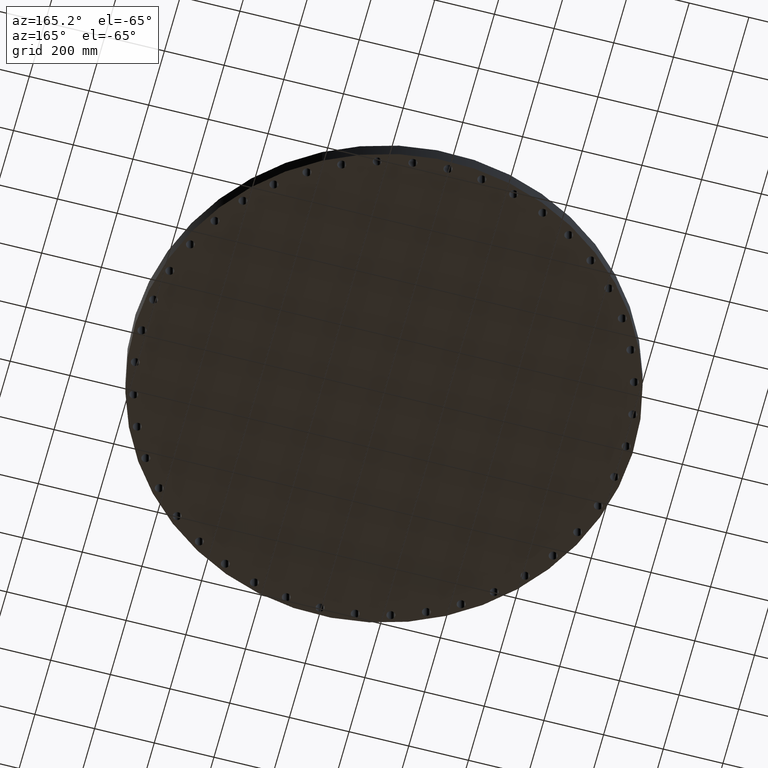
[diagram: clean part render]
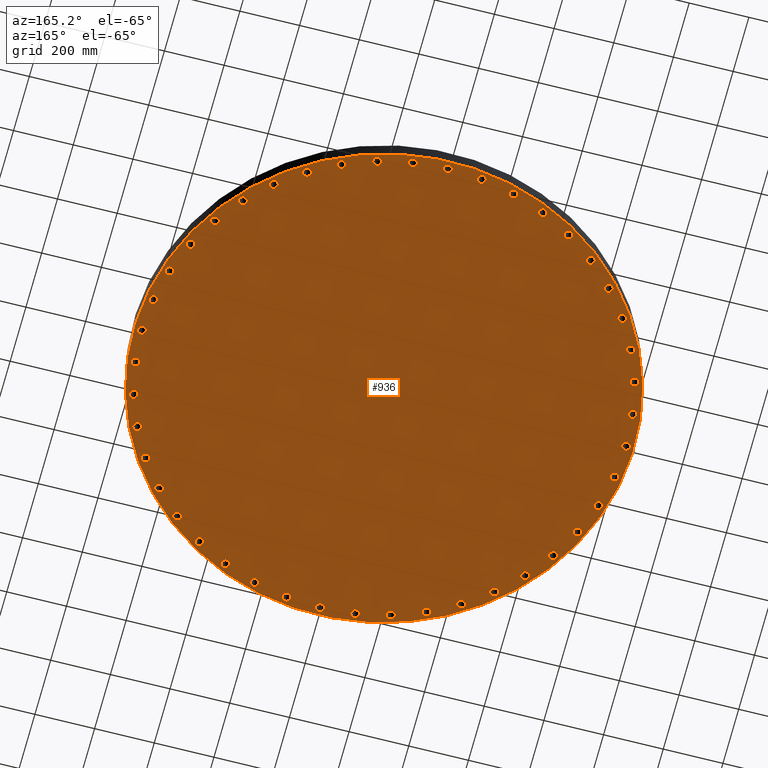
[diagram: same view with one face highlighted and labeled with its STEP entity id]
A machine part, auxiliary view. The second image highlights one B-rep face of the part: STEP entity #936.
In plain terms, the highlighted planar face has unit normal (0, 0, -1).
Its self-contained STEP definition (entity closure, byte-faithful):
#51=AXIS2_PLACEMENT_3D('Circle Axis2P3D',#49,#50,$) ;
#77=AXIS2_PLACEMENT_3D('Circle Axis2P3D',#75,#76,$) ;
#99=AXIS2_PLACEMENT_3D('Circle Axis2P3D',#97,#98,$) ;
#134=AXIS2_PLACEMENT_3D('Circle Axis2P3D',#132,#133,$) ;
#152=AXIS2_PLACEMENT_3D('Plane Axis2P3D',#149,#150,#151) ;
#164=AXIS2_PLACEMENT_3D('Circle Axis2P3D',#162,#163,$) ;
#173=AXIS2_PLACEMENT_3D('Circle Axis2P3D',#171,#172,$) ;
#182=AXIS2_PLACEMENT_3D('Circle Axis2P3D',#180,#181,$) ;
#191=AXIS2_PLACEMENT_3D('Circle Axis2P3D',#189,#190,$) ;
#200=AXIS2_PLACEMENT_3D('Circle Axis2P3D',#198,#199,$) ;
#209=AXIS2_PLACEMENT_3D('Circle Axis2P3D',#207,#208,$) ;
#218=AXIS2_PLACEMENT_3D('Circle Axis2P3D',#216,#217,$) ;
#227=AXIS2_PLACEMENT_3D('Circle Axis2P3D',#225,#226,$) ;
#236=AXIS2_PLACEMENT_3D('Circle Axis2P3D',#234,#235,$) ;
#245=AXIS2_PLACEMENT_3D('Circle Axis2P3D',#243,#244,$) ;
#254=AXIS2_PLACEMENT_3D('Circle Axis2P3D',#252,#253,$) ;
#263=AXIS2_PLACEMENT_3D('Circle Axis2P3D',#261,#262,$) ;
#272=AXIS2_PLACEMENT_3D('Circle Axis2P3D',#270,#271,$) ;
#281=AXIS2_PLACEMENT_3D('Circle Axis2P3D',#279,#280,$) ;
#290=AXIS2_PLACEMENT_3D('Circle Axis2P3D',#288,#289,$) ;
#299=AXIS2_PLACEMENT_3D('Circle Axis2P3D',#297,#298,$) ;
#308=AXIS2_PLACEMENT_3D('Circle Axis2P3D',#306,#307,$) ;
#317=AXIS2_PLACEMENT_3D('Circle Axis2P3D',#315,#316,$) ;
#326=AXIS2_PLACEMENT_3D('Circle Axis2P3D',#324,#325,$) ;
#335=AXIS2_PLACEMENT_3D('Circle Axis2P3D',#333,#334,$) ;
#344=AXIS2_PLACEMENT_3D('Circle Axis2P3D',#342,#343,$) ;
#353=AXIS2_PLACEMENT_3D('Circle Axis2P3D',#351,#352,$) ;
#362=AXIS2_PLACEMENT_3D('Circle Axis2P3D',#360,#361,$) ;
#371=AXIS2_PLACEMENT_3D('Circle Axis2P3D',#369,#370,$) ;
#380=AXIS2_PLACEMENT_3D('Circle Axis2P3D',#378,#379,$) ;
#389=AXIS2_PLACEMENT_3D('Circle Axis2P3D',#387,#388,$) ;
#398=AXIS2_PLACEMENT_3D('Circle Axis2P3D',#396,#397,$) ;
#407=AXIS2_PLACEMENT_3D('Circle Axis2P3D',#405,#406,$) ;
#416=AXIS2_PLACEMENT_3D('Circle Axis2P3D',#414,#415,$) ;
#425=AXIS2_PLACEMENT_3D('Circle Axis2P3D',#423,#424,$) ;
#434=AXIS2_PLACEMENT_3D('Circle Axis2P3D',#432,#433,$) ;
#443=AXIS2_PLACEMENT_3D('Circle Axis2P3D',#441,#442,$) ;
#452=AXIS2_PLACEMENT_3D('Circle Axis2P3D',#450,#451,$) ;
#461=AXIS2_PLACEMENT_3D('Circle Axis2P3D',#459,#460,$) ;
#470=AXIS2_PLACEMENT_3D('Circle Axis2P3D',#468,#469,$) ;
#479=AXIS2_PLACEMENT_3D('Circle Axis2P3D',#477,#478,$) ;
#488=AXIS2_PLACEMENT_3D('Circle Axis2P3D',#486,#487,$) ;
#497=AXIS2_PLACEMENT_3D('Circle Axis2P3D',#495,#496,$) ;
#506=AXIS2_PLACEMENT_3D('Circle Axis2P3D',#504,#505,$) ;
#515=AXIS2_PLACEMENT_3D('Circle Axis2P3D',#513,#514,$) ;
#524=AXIS2_PLACEMENT_3D('Circle Axis2P3D',#522,#523,$) ;
#533=AXIS2_PLACEMENT_3D('Circle Axis2P3D',#531,#532,$) ;
#542=AXIS2_PLACEMENT_3D('Circle Axis2P3D',#540,#541,$) ;
#551=AXIS2_PLACEMENT_3D('Circle Axis2P3D',#549,#550,$) ;
#560=AXIS2_PLACEMENT_3D('Circle Axis2P3D',#558,#559,$) ;
#569=AXIS2_PLACEMENT_3D('Circle Axis2P3D',#567,#568,$) ;
#578=AXIS2_PLACEMENT_3D('Circle Axis2P3D',#576,#577,$) ;
#587=AXIS2_PLACEMENT_3D('Circle Axis2P3D',#585,#586,$) ;
#596=AXIS2_PLACEMENT_3D('Circle Axis2P3D',#594,#595,$) ;
#605=AXIS2_PLACEMENT_3D('Circle Axis2P3D',#603,#604,$) ;
#614=AXIS2_PLACEMENT_3D('Circle Axis2P3D',#612,#613,$) ;
#623=AXIS2_PLACEMENT_3D('Circle Axis2P3D',#621,#622,$) ;
#632=AXIS2_PLACEMENT_3D('Circle Axis2P3D',#630,#631,$) ;
#641=AXIS2_PLACEMENT_3D('Circle Axis2P3D',#639,#640,$) ;
#650=AXIS2_PLACEMENT_3D('Circle Axis2P3D',#648,#649,$) ;
#659=AXIS2_PLACEMENT_3D('Circle Axis2P3D',#657,#658,$) ;
#668=AXIS2_PLACEMENT_3D('Circle Axis2P3D',#666,#667,$) ;
#677=AXIS2_PLACEMENT_3D('Circle Axis2P3D',#675,#676,$) ;
#686=AXIS2_PLACEMENT_3D('Circle Axis2P3D',#684,#685,$) ;
#695=AXIS2_PLACEMENT_3D('Circle Axis2P3D',#693,#694,$) ;
#704=AXIS2_PLACEMENT_3D('Circle Axis2P3D',#702,#703,$) ;
#713=AXIS2_PLACEMENT_3D('Circle Axis2P3D',#711,#712,$) ;
#722=AXIS2_PLACEMENT_3D('Circle Axis2P3D',#720,#721,$) ;
#731=AXIS2_PLACEMENT_3D('Circle Axis2P3D',#729,#730,$) ;
#740=AXIS2_PLACEMENT_3D('Circle Axis2P3D',#738,#739,$) ;
#749=AXIS2_PLACEMENT_3D('Circle Axis2P3D',#747,#748,$) ;
#758=AXIS2_PLACEMENT_3D('Circle Axis2P3D',#756,#757,$) ;
#767=AXIS2_PLACEMENT_3D('Circle Axis2P3D',#765,#766,$) ;
#776=AXIS2_PLACEMENT_3D('Circle Axis2P3D',#774,#775,$) ;
#785=AXIS2_PLACEMENT_3D('Circle Axis2P3D',#783,#784,$) ;
#794=AXIS2_PLACEMENT_3D('Circle Axis2P3D',#792,#793,$) ;
#803=AXIS2_PLACEMENT_3D('Circle Axis2P3D',#801,#802,$) ;
#812=AXIS2_PLACEMENT_3D('Circle Axis2P3D',#810,#811,$) ;
#821=AXIS2_PLACEMENT_3D('Circle Axis2P3D',#819,#820,$) ;
#830=AXIS2_PLACEMENT_3D('Circle Axis2P3D',#828,#829,$) ;
#839=AXIS2_PLACEMENT_3D('Circle Axis2P3D',#837,#838,$) ;
#848=AXIS2_PLACEMENT_3D('Circle Axis2P3D',#846,#847,$) ;
#857=AXIS2_PLACEMENT_3D('Circle Axis2P3D',#855,#856,$) ;
#866=AXIS2_PLACEMENT_3D('Circle Axis2P3D',#864,#865,$) ;
#875=AXIS2_PLACEMENT_3D('Circle Axis2P3D',#873,#874,$) ;
#884=AXIS2_PLACEMENT_3D('Circle Axis2P3D',#882,#883,$) ;
#893=AXIS2_PLACEMENT_3D('Circle Axis2P3D',#891,#892,$) ;
#902=AXIS2_PLACEMENT_3D('Circle Axis2P3D',#900,#901,$) ;
#911=AXIS2_PLACEMENT_3D('Circle Axis2P3D',#909,#910,$) ;
#920=AXIS2_PLACEMENT_3D('Circle Axis2P3D',#918,#919,$) ;
#929=AXIS2_PLACEMENT_3D('Circle Axis2P3D',#927,#928,$) ;
#44=CARTESIAN_POINT('Vertex',(31.4485537655,0.268478301619,0.)) ;
#49=CARTESIAN_POINT('Axis2P3D Location',(31.9400000001,0.,0.)) ;
#53=CARTESIAN_POINT('Vertex',(32.4314462348,-0.268478301619,0.)) ;
#75=CARTESIAN_POINT('Axis2P3D Location',(31.9400000001,0.,0.)) ;
#97=CARTESIAN_POINT('Axis2P3D Location',(0.,0.,3.63663604917E-015)) ;
#101=CARTESIAN_POINT('Vertex',(15.821042774,28.9602245425,3.63663604917E-015)) ;
#103=CARTESIAN_POINT('Vertex',(-15.821042774,-28.9602245425,3.63663604917E-015)) ;
#132=CARTESIAN_POINT('Axis2P3D Location',(0.,0.,3.63663604917E-015)) ;
#149=CARTESIAN_POINT('Axis2P3D Location',(0.,0.,0.)) ;
#162=CARTESIAN_POINT('Axis2P3D Location',(31.6148968538,-4.54553593447,0.)) ;
#166=CARTESIAN_POINT('Vertex',(31.1666612793,-4.20985026344,0.)) ;
#168=CARTESIAN_POINT('Vertex',(32.0631324283,-4.8812216055,-2.23792987641E-015)) ;
#171=CARTESIAN_POINT('Axis2P3D Location',(31.6148968538,-4.54553593447,0.)) ;
#180=CARTESIAN_POINT('Axis2P3D Location',(30.6462055774,-8.99853786555,0.)) ;
#184=CARTESIAN_POINT('Vertex',(30.2503054467,-8.60247841734,0.)) ;
#186=CARTESIAN_POINT('Vertex',(31.0421057081,-9.39459731376,-2.23792987641E-015)) ;
#189=CARTESIAN_POINT('Axis2P3D Location',(30.6462055774,-8.99853786555,0.)) ;
#198=CARTESIAN_POINT('Axis2P3D Location',(29.0536459317,-13.2683555153,0.)) ;
#202=CARTESIAN_POINT('Vertex',(28.7181406299,-12.8199849182,0.)) ;
#204=CARTESIAN_POINT('Vertex',(29.3891512336,-13.7167261125,0.)) ;
#207=CARTESIAN_POINT('Axis2P3D Location',(29.0536459317,-13.2683555153,0.)) ;
#216=CARTESIAN_POINT('Axis2P3D Location',(26.8696378387,-17.2680677096,0.)) ;
#220=CARTESIAN_POINT('Vertex',(26.6013572861,-16.7765134958,0.)) ;
#222=CARTESIAN_POINT('Vertex',(27.1379183914,-17.7596219234,0.)) ;
#225=CARTESIAN_POINT('Axis2P3D Location',(26.8696378387,-17.2680677096,0.)) ;
#234=CARTESIAN_POINT('Axis2P3D Location',(24.138641405,-20.9162518423,0.)) ;
#238=CARTESIAN_POINT('Vertex',(23.94304702,-20.3915206382,0.)) ;
#240=CARTESIAN_POINT('Vertex',(24.33423579,-21.4409830464,0.)) ;
#243=CARTESIAN_POINT('Axis2P3D Location',(24.138641405,-20.9162518423,0.)) ;
#252=CARTESIAN_POINT('Axis2P3D Location',(20.9162518423,-24.138641405,0.)) ;
#256=CARTESIAN_POINT('Vertex',(20.7973253625,-23.5914152247,0.)) ;
#258=CARTESIAN_POINT('Vertex',(21.035178322,-24.6858675853,-2.23792987641E-015)) ;
#261=CARTESIAN_POINT('Axis2P3D Location',(20.9162518423,-24.138641405,0.)) ;
#270=CARTESIAN_POINT('Axis2P3D Location',(17.2680677096,-26.8696378387,0.)) ;
#274=CARTESIAN_POINT('Vertex',(17.2282301353,-26.3110566292,0.)) ;
#276=CARTESIAN_POINT('Vertex',(17.3079052839,-27.4282190483,0.)) ;
#279=CARTESIAN_POINT('Axis2P3D Location',(17.2680677096,-26.8696378387,0.)) ;
#288=CARTESIAN_POINT('Axis2P3D Location',(13.2683555153,-29.0536459317,0.)) ;
#292=CARTESIAN_POINT('Vertex',(13.3084178246,-28.4950807955,0.)) ;
#294=CARTESIAN_POINT('Vertex',(13.2282932061,-29.6122110679,0.)) ;
#297=CARTESIAN_POINT('Axis2P3D Location',(13.2683555153,-29.0536459317,0.)) ;
#306=CARTESIAN_POINT('Axis2P3D Location',(8.99853786555,-30.6462055774,0.)) ;
#310=CARTESIAN_POINT('Vertex',(9.11768450528,-30.0990272899,0.)) ;
#312=CARTESIAN_POINT('Vertex',(8.87939122582,-31.1933838648,-2.23792987641E-015)) ;
#315=CARTESIAN_POINT('Axis2P3D Location',(8.99853786555,-30.6462055774,0.)) ;
#324=CARTESIAN_POINT('Axis2P3D Location',(4.54553593447,-31.6148968538,0.)) ;
#328=CARTESIAN_POINT('Vertex',(4.74134142268,-31.0902443871,0.)) ;
#330=CARTESIAN_POINT('Vertex',(4.34973044625,-32.1395493205,0.)) ;
#333=CARTESIAN_POINT('Axis2P3D Location',(4.54553593447,-31.6148968538,0.)) ;
#342=CARTESIAN_POINT('Axis2P3D Location',(-2.51767111096E-015,-31.9400000001,0.)) ;
#346=CARTESIAN_POINT('Vertex',(0.268478301619,-31.4485537655,0.)) ;
#348=CARTESIAN_POINT('Vertex',(-0.268478301619,-32.4314462348,0.)) ;
#351=CARTESIAN_POINT('Axis2P3D Location',(-2.30786518505E-015,-31.9400000001,0.)) ;
#360=CARTESIAN_POINT('Axis2P3D Location',(-4.54553593447,-31.6148968538,0.)) ;
#364=CARTESIAN_POINT('Vertex',(-4.20985026344,-31.1666612793,0.)) ;
#366=CARTESIAN_POINT('Vertex',(-4.8812216055,-32.0631324283,0.)) ;
#369=CARTESIAN_POINT('Axis2P3D Location',(-4.54553593447,-31.6148968538,0.)) ;
#378=CARTESIAN_POINT('Axis2P3D Location',(-8.99853786555,-30.6462055774,0.)) ;
#382=CARTESIAN_POINT('Vertex',(-8.60247841734,-30.2503054467,0.)) ;
#384=CARTESIAN_POINT('Vertex',(-9.39459731376,-31.0421057081,-2.23792987641E-015)) ;
#387=CARTESIAN_POINT('Axis2P3D Location',(-8.99853786555,-30.6462055774,0.)) ;
#396=CARTESIAN_POINT('Axis2P3D Location',(-13.2683555153,-29.0536459317,0.)) ;
#400=CARTESIAN_POINT('Vertex',(-12.8199849182,-28.7181406299,0.)) ;
#402=CARTESIAN_POINT('Vertex',(-13.7167261125,-29.3891512336,0.)) ;
#405=CARTESIAN_POINT('Axis2P3D Location',(-13.2683555153,-29.0536459317,0.)) ;
#414=CARTESIAN_POINT('Axis2P3D Location',(-17.2680677096,-26.8696378387,0.)) ;
#418=CARTESIAN_POINT('Vertex',(-16.7765134958,-26.6013572861,0.)) ;
#420=CARTESIAN_POINT('Vertex',(-17.7596219234,-27.1379183914,-2.23792987641E-015)) ;
#423=CARTESIAN_POINT('Axis2P3D Location',(-17.2680677096,-26.8696378387,0.)) ;
#432=CARTESIAN_POINT('Axis2P3D Location',(-20.9162518423,-24.138641405,0.)) ;
#436=CARTESIAN_POINT('Vertex',(-20.3915206382,-23.94304702,0.)) ;
#438=CARTESIAN_POINT('Vertex',(-21.4409830464,-24.33423579,-2.23792987641E-015)) ;
#441=CARTESIAN_POINT('Axis2P3D Location',(-20.9162518423,-24.138641405,0.)) ;
#450=CARTESIAN_POINT('Axis2P3D Location',(-24.138641405,-20.9162518423,0.)) ;
#454=CARTESIAN_POINT('Vertex',(-23.5914152247,-20.7973253625,0.)) ;
#456=CARTESIAN_POINT('Vertex',(-24.6858675853,-21.035178322,0.)) ;
#459=CARTESIAN_POINT('Axis2P3D Location',(-24.138641405,-20.9162518423,0.)) ;
#468=CARTESIAN_POINT('Axis2P3D Location',(-26.8696378387,-17.2680677096,0.)) ;
#472=CARTESIAN_POINT('Vertex',(-26.3110566292,-17.2282301353,0.)) ;
#474=CARTESIAN_POINT('Vertex',(-27.4282190483,-17.3079052839,0.)) ;
#477=CARTESIAN_POINT('Axis2P3D Location',(-26.8696378387,-17.2680677096,0.)) ;
#486=CARTESIAN_POINT('Axis2P3D Location',(-29.0536459317,-13.2683555153,0.)) ;
#490=CARTESIAN_POINT('Vertex',(-28.4950807955,-13.3084178246,0.)) ;
#492=CARTESIAN_POINT('Vertex',(-29.6122110679,-13.2282932061,0.)) ;
#495=CARTESIAN_POINT('Axis2P3D Location',(-29.0536459317,-13.2683555153,0.)) ;
#504=CARTESIAN_POINT('Axis2P3D Location',(-30.6462055774,-8.99853786555,0.)) ;
#508=CARTESIAN_POINT('Vertex',(-30.0990272899,-9.11768450528,0.)) ;
#510=CARTESIAN_POINT('Vertex',(-31.1933838648,-8.87939122582,0.)) ;
#513=CARTESIAN_POINT('Axis2P3D Location',(-30.6462055774,-8.99853786555,0.)) ;
#522=CARTESIAN_POINT('Axis2P3D Location',(-31.6148968538,-4.54553593447,0.)) ;
#526=CARTESIAN_POINT('Vertex',(-31.0902443871,-4.74134142268,0.)) ;
#528=CARTESIAN_POINT('Vertex',(-32.1395493205,-4.34973044625,-2.23792987641E-015)) ;
#531=CARTESIAN_POINT('Axis2P3D Location',(-31.6148968538,-4.54553593447,0.)) ;
#540=CARTESIAN_POINT('Axis2P3D Location',(-31.9400000001,-5.87456592558E-015,0.)) ;
#544=CARTESIAN_POINT('Vertex',(-31.4485537655,-0.268478301619,0.)) ;
#546=CARTESIAN_POINT('Vertex',(-32.4314462348,0.268478301619,0.)) ;
#549=CARTESIAN_POINT('Axis2P3D Location',(-31.9400000001,-5.66475999966E-015,0.)) ;
#558=CARTESIAN_POINT('Axis2P3D Location',(-31.6148968538,4.54553593447,0.)) ;
#562=CARTESIAN_POINT('Vertex',(-31.1666612793,4.20985026344,0.)) ;
#564=CARTESIAN_POINT('Vertex',(-32.0631324283,4.8812216055,0.)) ;
#567=CARTESIAN_POINT('Axis2P3D Location',(-31.6148968538,4.54553593447,0.)) ;
#576=CARTESIAN_POINT('Axis2P3D Location',(-30.6462055774,8.99853786555,0.)) ;
#580=CARTESIAN_POINT('Vertex',(-30.2503054467,8.60247841734,0.)) ;
#582=CARTESIAN_POINT('Vertex',(-31.0421057081,9.39459731376,0.)) ;
#585=CARTESIAN_POINT('Axis2P3D Location',(-30.6462055774,8.99853786555,0.)) ;
#594=CARTESIAN_POINT('Axis2P3D Location',(-29.0536459317,13.2683555153,0.)) ;
#598=CARTESIAN_POINT('Vertex',(-28.7181406299,12.8199849182,0.)) ;
#600=CARTESIAN_POINT('Vertex',(-29.3891512336,13.7167261125,0.)) ;
#603=CARTESIAN_POINT('Axis2P3D Location',(-29.0536459317,13.2683555153,0.)) ;
#612=CARTESIAN_POINT('Axis2P3D Location',(-26.8696378387,17.2680677096,0.)) ;
#616=CARTESIAN_POINT('Vertex',(-26.6013572861,16.7765134958,0.)) ;
#618=CARTESIAN_POINT('Vertex',(-27.1379183914,17.7596219234,0.)) ;
#621=CARTESIAN_POINT('Axis2P3D Location',(-26.8696378387,17.2680677096,0.)) ;
#630=CARTESIAN_POINT('Axis2P3D Location',(-24.138641405,20.9162518423,0.)) ;
#634=CARTESIAN_POINT('Vertex',(-23.94304702,20.3915206382,0.)) ;
#636=CARTESIAN_POINT('Vertex',(-24.33423579,21.4409830464,0.)) ;
#639=CARTESIAN_POINT('Axis2P3D Location',(-24.138641405,20.9162518423,0.)) ;
#648=CARTESIAN_POINT('Axis2P3D Location',(-20.9162518423,24.138641405,0.)) ;
#652=CARTESIAN_POINT('Vertex',(-20.7973253625,23.5914152247,0.)) ;
#654=CARTESIAN_POINT('Vertex',(-21.035178322,24.6858675853,0.)) ;
#657=CARTESIAN_POINT('Axis2P3D Location',(-20.9162518423,24.138641405,0.)) ;
#666=CARTESIAN_POINT('Axis2P3D Location',(-17.2680677096,26.8696378387,0.)) ;
#670=CARTESIAN_POINT('Vertex',(-17.2282301353,26.3110566292,0.)) ;
#672=CARTESIAN_POINT('Vertex',(-17.3079052839,27.4282190483,0.)) ;
#675=CARTESIAN_POINT('Axis2P3D Location',(-17.2680677096,26.8696378387,0.)) ;
#684=CARTESIAN_POINT('Axis2P3D Location',(-13.2683555153,29.0536459317,0.)) ;
#688=CARTESIAN_POINT('Vertex',(-13.3084178246,28.4950807955,0.)) ;
#690=CARTESIAN_POINT('Vertex',(-13.2282932061,29.6122110679,0.)) ;
#693=CARTESIAN_POINT('Axis2P3D Location',(-13.2683555153,29.0536459317,0.)) ;
#702=CARTESIAN_POINT('Axis2P3D Location',(-8.99853786555,30.6462055774,0.)) ;
#706=CARTESIAN_POINT('Vertex',(-9.11768450528,30.0990272899,0.)) ;
#708=CARTESIAN_POINT('Vertex',(-8.87939122582,31.1933838648,-2.23792987641E-015)) ;
#711=CARTESIAN_POINT('Axis2P3D Location',(-8.99853786555,30.6462055774,0.)) ;
#720=CARTESIAN_POINT('Axis2P3D Location',(-4.54553593447,31.6148968538,0.)) ;
#724=CARTESIAN_POINT('Vertex',(-4.74134142268,31.0902443871,0.)) ;
#726=CARTESIAN_POINT('Vertex',(-4.34973044625,32.1395493205,0.)) ;
#729=CARTESIAN_POINT('Axis2P3D Location',(-4.54553593447,31.6148968538,0.)) ;
#738=CARTESIAN_POINT('Axis2P3D Location',(-1.67844740731E-015,31.9400000001,0.)) ;
#742=CARTESIAN_POINT('Vertex',(-0.268478301619,31.4485537655,0.)) ;
#744=CARTESIAN_POINT('Vertex',(0.268478301619,32.4314462348,0.)) ;
#747=CARTESIAN_POINT('Axis2P3D Location',(-1.60851209867E-015,31.9400000001,0.)) ;
#756=CARTESIAN_POINT('Axis2P3D Location',(4.54553593447,31.6148968538,0.)) ;
#760=CARTESIAN_POINT('Vertex',(4.20985026344,31.1666612793,0.)) ;
#762=CARTESIAN_POINT('Vertex',(4.8812216055,32.0631324283,0.)) ;
#765=CARTESIAN_POINT('Axis2P3D Location',(4.54553593447,31.6148968538,0.)) ;
#774=CARTESIAN_POINT('Axis2P3D Location',(8.99853786555,30.6462055774,0.)) ;
#778=CARTESIAN_POINT('Vertex',(8.60247841734,30.2503054467,0.)) ;
#780=CARTESIAN_POINT('Vertex',(9.39459731376,31.0421057081,0.)) ;
#783=CARTESIAN_POINT('Axis2P3D Location',(8.99853786555,30.6462055774,0.)) ;
#792=CARTESIAN_POINT('Axis2P3D Location',(13.2683555153,29.0536459317,0.)) ;
#796=CARTESIAN_POINT('Vertex',(12.8199849182,28.7181406299,0.)) ;
#798=CARTESIAN_POINT('Vertex',(13.7167261125,29.3891512336,0.)) ;
#801=CARTESIAN_POINT('Axis2P3D Location',(13.2683555153,29.0536459317,0.)) ;
#810=CARTESIAN_POINT('Axis2P3D Location',(17.2680677096,26.8696378387,0.)) ;
#814=CARTESIAN_POINT('Vertex',(16.7765134958,26.6013572861,0.)) ;
#816=CARTESIAN_POINT('Vertex',(17.7596219234,27.1379183914,0.)) ;
#819=CARTESIAN_POINT('Axis2P3D Location',(17.2680677096,26.8696378387,0.)) ;
#828=CARTESIAN_POINT('Axis2P3D Location',(20.9162518423,24.138641405,0.)) ;
#832=CARTESIAN_POINT('Vertex',(20.3915206382,23.94304702,0.)) ;
#834=CARTESIAN_POINT('Vertex',(21.4409830464,24.33423579,0.)) ;
#837=CARTESIAN_POINT('Axis2P3D Location',(20.9162518423,24.138641405,0.)) ;
#846=CARTESIAN_POINT('Axis2P3D Location',(24.138641405,20.9162518423,0.)) ;
#850=CARTESIAN_POINT('Vertex',(23.5914152247,20.7973253625,0.)) ;
#852=CARTESIAN_POINT('Vertex',(24.6858675853,21.035178322,0.)) ;
#855=CARTESIAN_POINT('Axis2P3D Location',(24.138641405,20.9162518423,0.)) ;
#864=CARTESIAN_POINT('Axis2P3D Location',(26.8696378387,17.2680677096,0.)) ;
#868=CARTESIAN_POINT('Vertex',(26.3110566292,17.2282301353,0.)) ;
#870=CARTESIAN_POINT('Vertex',(27.4282190483,17.3079052839,0.)) ;
#873=CARTESIAN_POINT('Axis2P3D Location',(26.8696378387,17.2680677096,0.)) ;
#882=CARTESIAN_POINT('Axis2P3D Location',(29.0536459317,13.2683555153,0.)) ;
#886=CARTESIAN_POINT('Vertex',(28.4950807955,13.3084178246,0.)) ;
#888=CARTESIAN_POINT('Vertex',(29.6122110679,13.2282932061,0.)) ;
#891=CARTESIAN_POINT('Axis2P3D Location',(29.0536459317,13.2683555153,0.)) ;
#900=CARTESIAN_POINT('Axis2P3D Location',(30.6462055774,8.99853786555,0.)) ;
#904=CARTESIAN_POINT('Vertex',(30.0990272899,9.11768450528,0.)) ;
#906=CARTESIAN_POINT('Vertex',(31.1933838648,8.87939122582,0.)) ;
#909=CARTESIAN_POINT('Axis2P3D Location',(30.6462055774,8.99853786555,0.)) ;
#918=CARTESIAN_POINT('Axis2P3D Location',(31.6148968538,4.54553593447,0.)) ;
#922=CARTESIAN_POINT('Vertex',(31.0902443871,4.74134142268,0.)) ;
#924=CARTESIAN_POINT('Vertex',(32.1395493205,4.34973044625,0.)) ;
#927=CARTESIAN_POINT('Axis2P3D Location',(31.6148968538,4.54553593447,0.)) ;
#50=DIRECTION('Axis2P3D Direction',(0.,-0.,-0.0393700787402)) ;
#76=DIRECTION('Axis2P3D Direction',(0.,-0.,-0.0393700787402)) ;
#98=DIRECTION('Axis2P3D Direction',(0.,0.,-0.0393700787402)) ;
#133=DIRECTION('Axis2P3D Direction',(0.,0.,-0.0393700787402)) ;
#150=DIRECTION('Axis2P3D Direction',(0.,0.,-0.0393700787402)) ;
#151=DIRECTION('Axis2P3D XDirection',(0.0393700787402,0.,0.)) ;
#163=DIRECTION('Axis2P3D Direction',(0.,0.,-0.0393700787402)) ;
#172=DIRECTION('Axis2P3D Direction',(0.,0.,-0.0393700787402)) ;
#181=DIRECTION('Axis2P3D Direction',(0.,0.,-0.0393700787402)) ;
#190=DIRECTION('Axis2P3D Direction',(0.,0.,-0.0393700787402)) ;
#199=DIRECTION('Axis2P3D Direction',(0.,0.,-0.0393700787402)) ;
#208=DIRECTION('Axis2P3D Direction',(0.,0.,-0.0393700787402)) ;
#217=DIRECTION('Axis2P3D Direction',(0.,0.,-0.0393700787402)) ;
#226=DIRECTION('Axis2P3D Direction',(0.,0.,-0.0393700787402)) ;
#235=DIRECTION('Axis2P3D Direction',(0.,0.,-0.0393700787402)) ;
#244=DIRECTION('Axis2P3D Direction',(0.,0.,-0.0393700787402)) ;
#253=DIRECTION('Axis2P3D Direction',(0.,0.,-0.0393700787402)) ;
#262=DIRECTION('Axis2P3D Direction',(0.,0.,-0.0393700787402)) ;
#271=DIRECTION('Axis2P3D Direction',(0.,0.,-0.0393700787402)) ;
#280=DIRECTION('Axis2P3D Direction',(0.,0.,-0.0393700787402)) ;
#289=DIRECTION('Axis2P3D Direction',(0.,0.,-0.0393700787402)) ;
#298=DIRECTION('Axis2P3D Direction',(0.,0.,-0.0393700787402)) ;
#307=DIRECTION('Axis2P3D Direction',(0.,0.,-0.0393700787402)) ;
#316=DIRECTION('Axis2P3D Direction',(0.,0.,-0.0393700787402)) ;
#325=DIRECTION('Axis2P3D Direction',(0.,0.,-0.0393700787402)) ;
#334=DIRECTION('Axis2P3D Direction',(0.,0.,-0.0393700787402)) ;
#343=DIRECTION('Axis2P3D Direction',(0.,0.,-0.0393700787402)) ;
#352=DIRECTION('Axis2P3D Direction',(0.,0.,-0.0393700787402)) ;
#361=DIRECTION('Axis2P3D Direction',(0.,0.,-0.0393700787402)) ;
#370=DIRECTION('Axis2P3D Direction',(0.,0.,-0.0393700787402)) ;
#379=DIRECTION('Axis2P3D Direction',(0.,0.,-0.0393700787402)) ;
#388=DIRECTION('Axis2P3D Direction',(0.,0.,-0.0393700787402)) ;
#397=DIRECTION('Axis2P3D Direction',(0.,0.,-0.0393700787402)) ;
#406=DIRECTION('Axis2P3D Direction',(0.,0.,-0.0393700787402)) ;
#415=DIRECTION('Axis2P3D Direction',(0.,0.,-0.0393700787402)) ;
#424=DIRECTION('Axis2P3D Direction',(0.,0.,-0.0393700787402)) ;
#433=DIRECTION('Axis2P3D Direction',(0.,0.,-0.0393700787402)) ;
#442=DIRECTION('Axis2P3D Direction',(0.,0.,-0.0393700787402)) ;
#451=DIRECTION('Axis2P3D Direction',(0.,0.,-0.0393700787402)) ;
#460=DIRECTION('Axis2P3D Direction',(0.,0.,-0.0393700787402)) ;
#469=DIRECTION('Axis2P3D Direction',(0.,0.,-0.0393700787402)) ;
#478=DIRECTION('Axis2P3D Direction',(0.,0.,-0.0393700787402)) ;
#487=DIRECTION('Axis2P3D Direction',(0.,0.,-0.0393700787402)) ;
#496=DIRECTION('Axis2P3D Direction',(0.,0.,-0.0393700787402)) ;
#505=DIRECTION('Axis2P3D Direction',(0.,0.,-0.0393700787402)) ;
#514=DIRECTION('Axis2P3D Direction',(0.,0.,-0.0393700787402)) ;
#523=DIRECTION('Axis2P3D Direction',(0.,0.,-0.0393700787402)) ;
#532=DIRECTION('Axis2P3D Direction',(0.,0.,-0.0393700787402)) ;
#541=DIRECTION('Axis2P3D Direction',(0.,0.,-0.0393700787402)) ;
#550=DIRECTION('Axis2P3D Direction',(0.,0.,-0.0393700787402)) ;
#559=DIRECTION('Axis2P3D Direction',(0.,0.,-0.0393700787402)) ;
#568=DIRECTION('Axis2P3D Direction',(0.,0.,-0.0393700787402)) ;
#577=DIRECTION('Axis2P3D Direction',(0.,0.,-0.0393700787402)) ;
#586=DIRECTION('Axis2P3D Direction',(0.,0.,-0.0393700787402)) ;
#595=DIRECTION('Axis2P3D Direction',(0.,0.,-0.0393700787402)) ;
#604=DIRECTION('Axis2P3D Direction',(0.,0.,-0.0393700787402)) ;
#613=DIRECTION('Axis2P3D Direction',(0.,0.,-0.0393700787402)) ;
#622=DIRECTION('Axis2P3D Direction',(0.,0.,-0.0393700787402)) ;
#631=DIRECTION('Axis2P3D Direction',(0.,0.,-0.0393700787402)) ;
#640=DIRECTION('Axis2P3D Direction',(0.,0.,-0.0393700787402)) ;
#649=DIRECTION('Axis2P3D Direction',(0.,0.,-0.0393700787402)) ;
#658=DIRECTION('Axis2P3D Direction',(0.,0.,-0.0393700787402)) ;
#667=DIRECTION('Axis2P3D Direction',(0.,0.,-0.0393700787402)) ;
#676=DIRECTION('Axis2P3D Direction',(0.,0.,-0.0393700787402)) ;
#685=DIRECTION('Axis2P3D Direction',(0.,0.,-0.0393700787402)) ;
#694=DIRECTION('Axis2P3D Direction',(0.,0.,-0.0393700787402)) ;
#703=DIRECTION('Axis2P3D Direction',(0.,0.,-0.0393700787402)) ;
#712=DIRECTION('Axis2P3D Direction',(0.,0.,-0.0393700787402)) ;
#721=DIRECTION('Axis2P3D Direction',(0.,0.,-0.0393700787402)) ;
#730=DIRECTION('Axis2P3D Direction',(0.,0.,-0.0393700787402)) ;
#739=DIRECTION('Axis2P3D Direction',(0.,0.,-0.0393700787402)) ;
#748=DIRECTION('Axis2P3D Direction',(0.,0.,-0.0393700787402)) ;
#757=DIRECTION('Axis2P3D Direction',(0.,0.,-0.0393700787402)) ;
#766=DIRECTION('Axis2P3D Direction',(0.,0.,-0.0393700787402)) ;
#775=DIRECTION('Axis2P3D Direction',(0.,0.,-0.0393700787402)) ;
#784=DIRECTION('Axis2P3D Direction',(0.,0.,-0.0393700787402)) ;
#793=DIRECTION('Axis2P3D Direction',(0.,0.,-0.0393700787402)) ;
#802=DIRECTION('Axis2P3D Direction',(0.,0.,-0.0393700787402)) ;
#811=DIRECTION('Axis2P3D Direction',(0.,0.,-0.0393700787402)) ;
#820=DIRECTION('Axis2P3D Direction',(0.,0.,-0.0393700787402)) ;
#829=DIRECTION('Axis2P3D Direction',(0.,0.,-0.0393700787402)) ;
#838=DIRECTION('Axis2P3D Direction',(0.,0.,-0.0393700787402)) ;
#847=DIRECTION('Axis2P3D Direction',(0.,0.,-0.0393700787402)) ;
#856=DIRECTION('Axis2P3D Direction',(0.,0.,-0.0393700787402)) ;
#865=DIRECTION('Axis2P3D Direction',(0.,0.,-0.0393700787402)) ;
#874=DIRECTION('Axis2P3D Direction',(0.,0.,-0.0393700787402)) ;
#883=DIRECTION('Axis2P3D Direction',(0.,0.,-0.0393700787402)) ;
#892=DIRECTION('Axis2P3D Direction',(0.,0.,-0.0393700787402)) ;
#901=DIRECTION('Axis2P3D Direction',(0.,0.,-0.0393700787402)) ;
#910=DIRECTION('Axis2P3D Direction',(0.,0.,-0.0393700787402)) ;
#919=DIRECTION('Axis2P3D Direction',(0.,0.,-0.0393700787402)) ;
#928=DIRECTION('Axis2P3D Direction',(0.,0.,-0.0393700787402)) ;
#155=ORIENTED_EDGE('',*,*,#105,.T.) ;
#156=ORIENTED_EDGE('',*,*,#136,.T.) ;
#159=ORIENTED_EDGE('',*,*,#79,.F.) ;
#160=ORIENTED_EDGE('',*,*,#55,.F.) ;
#177=ORIENTED_EDGE('',*,*,#170,.F.) ;
#178=ORIENTED_EDGE('',*,*,#175,.F.) ;
#195=ORIENTED_EDGE('',*,*,#188,.F.) ;
#196=ORIENTED_EDGE('',*,*,#193,.F.) ;
#213=ORIENTED_EDGE('',*,*,#206,.F.) ;
#214=ORIENTED_EDGE('',*,*,#211,.F.) ;
#231=ORIENTED_EDGE('',*,*,#224,.F.) ;
#232=ORIENTED_EDGE('',*,*,#229,.F.) ;
#249=ORIENTED_EDGE('',*,*,#242,.F.) ;
#250=ORIENTED_EDGE('',*,*,#247,.F.) ;
#267=ORIENTED_EDGE('',*,*,#260,.F.) ;
#268=ORIENTED_EDGE('',*,*,#265,.F.) ;
#285=ORIENTED_EDGE('',*,*,#278,.F.) ;
#286=ORIENTED_EDGE('',*,*,#283,.F.) ;
#303=ORIENTED_EDGE('',*,*,#296,.F.) ;
#304=ORIENTED_EDGE('',*,*,#301,.F.) ;
#321=ORIENTED_EDGE('',*,*,#314,.F.) ;
#322=ORIENTED_EDGE('',*,*,#319,.F.) ;
#339=ORIENTED_EDGE('',*,*,#332,.F.) ;
#340=ORIENTED_EDGE('',*,*,#337,.F.) ;
#357=ORIENTED_EDGE('',*,*,#350,.F.) ;
#358=ORIENTED_EDGE('',*,*,#355,.F.) ;
#375=ORIENTED_EDGE('',*,*,#368,.F.) ;
#376=ORIENTED_EDGE('',*,*,#373,.F.) ;
#393=ORIENTED_EDGE('',*,*,#386,.F.) ;
#394=ORIENTED_EDGE('',*,*,#391,.F.) ;
#411=ORIENTED_EDGE('',*,*,#404,.F.) ;
#412=ORIENTED_EDGE('',*,*,#409,.F.) ;
#429=ORIENTED_EDGE('',*,*,#422,.F.) ;
#430=ORIENTED_EDGE('',*,*,#427,.F.) ;
#447=ORIENTED_EDGE('',*,*,#440,.F.) ;
#448=ORIENTED_EDGE('',*,*,#445,.F.) ;
#465=ORIENTED_EDGE('',*,*,#458,.F.) ;
#466=ORIENTED_EDGE('',*,*,#463,.F.) ;
#483=ORIENTED_EDGE('',*,*,#476,.F.) ;
#484=ORIENTED_EDGE('',*,*,#481,.F.) ;
#501=ORIENTED_EDGE('',*,*,#494,.F.) ;
#502=ORIENTED_EDGE('',*,*,#499,.F.) ;
#519=ORIENTED_EDGE('',*,*,#512,.F.) ;
#520=ORIENTED_EDGE('',*,*,#517,.F.) ;
#537=ORIENTED_EDGE('',*,*,#530,.F.) ;
#538=ORIENTED_EDGE('',*,*,#535,.F.) ;
#555=ORIENTED_EDGE('',*,*,#548,.F.) ;
#556=ORIENTED_EDGE('',*,*,#553,.F.) ;
#573=ORIENTED_EDGE('',*,*,#566,.F.) ;
#574=ORIENTED_EDGE('',*,*,#571,.F.) ;
#591=ORIENTED_EDGE('',*,*,#584,.F.) ;
#592=ORIENTED_EDGE('',*,*,#589,.F.) ;
#609=ORIENTED_EDGE('',*,*,#602,.F.) ;
#610=ORIENTED_EDGE('',*,*,#607,.F.) ;
#627=ORIENTED_EDGE('',*,*,#620,.F.) ;
#628=ORIENTED_EDGE('',*,*,#625,.F.) ;
#645=ORIENTED_EDGE('',*,*,#638,.F.) ;
#646=ORIENTED_EDGE('',*,*,#643,.F.) ;
#663=ORIENTED_EDGE('',*,*,#656,.F.) ;
#664=ORIENTED_EDGE('',*,*,#661,.F.) ;
#681=ORIENTED_EDGE('',*,*,#674,.F.) ;
#682=ORIENTED_EDGE('',*,*,#679,.F.) ;
#699=ORIENTED_EDGE('',*,*,#692,.F.) ;
#700=ORIENTED_EDGE('',*,*,#697,.F.) ;
#717=ORIENTED_EDGE('',*,*,#710,.F.) ;
#718=ORIENTED_EDGE('',*,*,#715,.F.) ;
#735=ORIENTED_EDGE('',*,*,#728,.F.) ;
#736=ORIENTED_EDGE('',*,*,#733,.F.) ;
#753=ORIENTED_EDGE('',*,*,#746,.F.) ;
#754=ORIENTED_EDGE('',*,*,#751,.F.) ;
#771=ORIENTED_EDGE('',*,*,#764,.F.) ;
#772=ORIENTED_EDGE('',*,*,#769,.F.) ;
#789=ORIENTED_EDGE('',*,*,#782,.F.) ;
#790=ORIENTED_EDGE('',*,*,#787,.F.) ;
#807=ORIENTED_EDGE('',*,*,#800,.F.) ;
#808=ORIENTED_EDGE('',*,*,#805,.F.) ;
#825=ORIENTED_EDGE('',*,*,#818,.F.) ;
#826=ORIENTED_EDGE('',*,*,#823,.F.) ;
#843=ORIENTED_EDGE('',*,*,#836,.F.) ;
#844=ORIENTED_EDGE('',*,*,#841,.F.) ;
#861=ORIENTED_EDGE('',*,*,#854,.F.) ;
#862=ORIENTED_EDGE('',*,*,#859,.F.) ;
#879=ORIENTED_EDGE('',*,*,#872,.F.) ;
#880=ORIENTED_EDGE('',*,*,#877,.F.) ;
#897=ORIENTED_EDGE('',*,*,#890,.F.) ;
#898=ORIENTED_EDGE('',*,*,#895,.F.) ;
#915=ORIENTED_EDGE('',*,*,#908,.F.) ;
#916=ORIENTED_EDGE('',*,*,#913,.F.) ;
#933=ORIENTED_EDGE('',*,*,#926,.F.) ;
#934=ORIENTED_EDGE('',*,*,#931,.F.) ;
#161=FACE_BOUND('',#158,.T.) ;
#179=FACE_BOUND('',#176,.T.) ;
#197=FACE_BOUND('',#194,.T.) ;
#215=FACE_BOUND('',#212,.T.) ;
#233=FACE_BOUND('',#230,.T.) ;
#251=FACE_BOUND('',#248,.T.) ;
#269=FACE_BOUND('',#266,.T.) ;
#287=FACE_BOUND('',#284,.T.) ;
#305=FACE_BOUND('',#302,.T.) ;
#323=FACE_BOUND('',#320,.T.) ;
#341=FACE_BOUND('',#338,.T.) ;
#359=FACE_BOUND('',#356,.T.) ;
#377=FACE_BOUND('',#374,.T.) ;
#395=FACE_BOUND('',#392,.T.) ;
#413=FACE_BOUND('',#410,.T.) ;
#431=FACE_BOUND('',#428,.T.) ;
#449=FACE_BOUND('',#446,.T.) ;
#467=FACE_BOUND('',#464,.T.) ;
#485=FACE_BOUND('',#482,.T.) ;
#503=FACE_BOUND('',#500,.T.) ;
#521=FACE_BOUND('',#518,.T.) ;
#539=FACE_BOUND('',#536,.T.) ;
#557=FACE_BOUND('',#554,.T.) ;
#575=FACE_BOUND('',#572,.T.) ;
#593=FACE_BOUND('',#590,.T.) ;
#611=FACE_BOUND('',#608,.T.) ;
#629=FACE_BOUND('',#626,.T.) ;
#647=FACE_BOUND('',#644,.T.) ;
#665=FACE_BOUND('',#662,.T.) ;
#683=FACE_BOUND('',#680,.T.) ;
#701=FACE_BOUND('',#698,.T.) ;
#719=FACE_BOUND('',#716,.T.) ;
#737=FACE_BOUND('',#734,.T.) ;
#755=FACE_BOUND('',#752,.T.) ;
#773=FACE_BOUND('',#770,.T.) ;
#791=FACE_BOUND('',#788,.T.) ;
#809=FACE_BOUND('',#806,.T.) ;
#827=FACE_BOUND('',#824,.T.) ;
#845=FACE_BOUND('',#842,.T.) ;
#863=FACE_BOUND('',#860,.T.) ;
#881=FACE_BOUND('',#878,.T.) ;
#899=FACE_BOUND('',#896,.T.) ;
#917=FACE_BOUND('',#914,.T.) ;
#935=FACE_BOUND('',#932,.T.) ;
#936=ADVANCED_FACE('PartBody',(#157,#161,#179,#197,#215,#233,#251,#269,#287,#305,#323,#341,#359,#377,#395,#413,#431,#449,#467,#485,#503,#521,#539,#557,#575,#593,#611,#629,#647,#665,#683,#701,#719,#737,#755,#773,#791,#809,#827,#845,#863,#881,#899,#917,#935),#153,.T.) ;
#52=CIRCLE('generated circle',#51,0.560000000002) ;
#78=CIRCLE('generated circle',#77,0.560000000002) ;
#100=CIRCLE('generated circle',#99,33.0000000001) ;
#135=CIRCLE('generated circle',#134,33.0000000001) ;
#165=CIRCLE('generated circle',#164,0.560000000002) ;
#174=CIRCLE('generated circle',#173,0.560000000002) ;
#183=CIRCLE('generated circle',#182,0.560000000002) ;
#192=CIRCLE('generated circle',#191,0.560000000002) ;
#201=CIRCLE('generated circle',#200,0.560000000002) ;
#210=CIRCLE('generated circle',#209,0.560000000002) ;
#219=CIRCLE('generated circle',#218,0.560000000002) ;
#228=CIRCLE('generated circle',#227,0.560000000002) ;
#237=CIRCLE('generated circle',#236,0.560000000002) ;
#246=CIRCLE('generated circle',#245,0.560000000002) ;
#255=CIRCLE('generated circle',#254,0.560000000002) ;
#264=CIRCLE('generated circle',#263,0.560000000002) ;
#273=CIRCLE('generated circle',#272,0.560000000002) ;
#282=CIRCLE('generated circle',#281,0.560000000002) ;
#291=CIRCLE('generated circle',#290,0.560000000002) ;
#300=CIRCLE('generated circle',#299,0.560000000002) ;
#309=CIRCLE('generated circle',#308,0.560000000002) ;
#318=CIRCLE('generated circle',#317,0.560000000002) ;
#327=CIRCLE('generated circle',#326,0.560000000002) ;
#336=CIRCLE('generated circle',#335,0.560000000002) ;
#345=CIRCLE('generated circle',#344,0.560000000002) ;
#354=CIRCLE('generated circle',#353,0.560000000002) ;
#363=CIRCLE('generated circle',#362,0.560000000002) ;
#372=CIRCLE('generated circle',#371,0.560000000002) ;
#381=CIRCLE('generated circle',#380,0.560000000002) ;
#390=CIRCLE('generated circle',#389,0.560000000002) ;
#399=CIRCLE('generated circle',#398,0.560000000002) ;
#408=CIRCLE('generated circle',#407,0.560000000002) ;
#417=CIRCLE('generated circle',#416,0.560000000002) ;
#426=CIRCLE('generated circle',#425,0.560000000002) ;
#435=CIRCLE('generated circle',#434,0.560000000002) ;
#444=CIRCLE('generated circle',#443,0.560000000002) ;
#453=CIRCLE('generated circle',#452,0.560000000002) ;
#462=CIRCLE('generated circle',#461,0.560000000002) ;
#471=CIRCLE('generated circle',#470,0.560000000002) ;
#480=CIRCLE('generated circle',#479,0.560000000002) ;
#489=CIRCLE('generated circle',#488,0.560000000002) ;
#498=CIRCLE('generated circle',#497,0.560000000002) ;
#507=CIRCLE('generated circle',#506,0.560000000002) ;
#516=CIRCLE('generated circle',#515,0.560000000002) ;
#525=CIRCLE('generated circle',#524,0.560000000002) ;
#534=CIRCLE('generated circle',#533,0.560000000002) ;
#543=CIRCLE('generated circle',#542,0.560000000002) ;
#552=CIRCLE('generated circle',#551,0.560000000002) ;
#561=CIRCLE('generated circle',#560,0.560000000002) ;
#570=CIRCLE('generated circle',#569,0.560000000002) ;
#579=CIRCLE('generated circle',#578,0.560000000002) ;
#588=CIRCLE('generated circle',#587,0.560000000002) ;
#597=CIRCLE('generated circle',#596,0.560000000002) ;
#606=CIRCLE('generated circle',#605,0.560000000002) ;
#615=CIRCLE('generated circle',#614,0.560000000002) ;
#624=CIRCLE('generated circle',#623,0.560000000002) ;
#633=CIRCLE('generated circle',#632,0.560000000002) ;
#642=CIRCLE('generated circle',#641,0.560000000002) ;
#651=CIRCLE('generated circle',#650,0.560000000002) ;
#660=CIRCLE('generated circle',#659,0.560000000002) ;
#669=CIRCLE('generated circle',#668,0.560000000002) ;
#678=CIRCLE('generated circle',#677,0.560000000002) ;
#687=CIRCLE('generated circle',#686,0.560000000002) ;
#696=CIRCLE('generated circle',#695,0.560000000002) ;
#705=CIRCLE('generated circle',#704,0.560000000002) ;
#714=CIRCLE('generated circle',#713,0.560000000002) ;
#723=CIRCLE('generated circle',#722,0.560000000002) ;
#732=CIRCLE('generated circle',#731,0.560000000002) ;
#741=CIRCLE('generated circle',#740,0.560000000002) ;
#750=CIRCLE('generated circle',#749,0.560000000002) ;
#759=CIRCLE('generated circle',#758,0.560000000002) ;
#768=CIRCLE('generated circle',#767,0.560000000002) ;
#777=CIRCLE('generated circle',#776,0.560000000002) ;
#786=CIRCLE('generated circle',#785,0.560000000002) ;
#795=CIRCLE('generated circle',#794,0.560000000002) ;
#804=CIRCLE('generated circle',#803,0.560000000002) ;
#813=CIRCLE('generated circle',#812,0.560000000002) ;
#822=CIRCLE('generated circle',#821,0.560000000002) ;
#831=CIRCLE('generated circle',#830,0.560000000002) ;
#840=CIRCLE('generated circle',#839,0.560000000002) ;
#849=CIRCLE('generated circle',#848,0.560000000002) ;
#858=CIRCLE('generated circle',#857,0.560000000002) ;
#867=CIRCLE('generated circle',#866,0.560000000002) ;
#876=CIRCLE('generated circle',#875,0.560000000002) ;
#885=CIRCLE('generated circle',#884,0.560000000002) ;
#894=CIRCLE('generated circle',#893,0.560000000002) ;
#903=CIRCLE('generated circle',#902,0.560000000002) ;
#912=CIRCLE('generated circle',#911,0.560000000002) ;
#921=CIRCLE('generated circle',#920,0.560000000002) ;
#930=CIRCLE('generated circle',#929,0.560000000002) ;
#55=EDGE_CURVE('',#45,#54,#52,.T.) ;
#79=EDGE_CURVE('',#54,#45,#78,.T.) ;
#105=EDGE_CURVE('',#102,#104,#100,.T.) ;
#136=EDGE_CURVE('',#104,#102,#135,.T.) ;
#170=EDGE_CURVE('',#167,#169,#165,.T.) ;
#175=EDGE_CURVE('',#169,#167,#174,.T.) ;
#188=EDGE_CURVE('',#185,#187,#183,.T.) ;
#193=EDGE_CURVE('',#187,#185,#192,.T.) ;
#206=EDGE_CURVE('',#203,#205,#201,.T.) ;
#211=EDGE_CURVE('',#205,#203,#210,.T.) ;
#224=EDGE_CURVE('',#221,#223,#219,.T.) ;
#229=EDGE_CURVE('',#223,#221,#228,.T.) ;
#242=EDGE_CURVE('',#239,#241,#237,.T.) ;
#247=EDGE_CURVE('',#241,#239,#246,.T.) ;
#260=EDGE_CURVE('',#257,#259,#255,.T.) ;
#265=EDGE_CURVE('',#259,#257,#264,.T.) ;
#278=EDGE_CURVE('',#275,#277,#273,.T.) ;
#283=EDGE_CURVE('',#277,#275,#282,.T.) ;
#296=EDGE_CURVE('',#293,#295,#291,.T.) ;
#301=EDGE_CURVE('',#295,#293,#300,.T.) ;
#314=EDGE_CURVE('',#311,#313,#309,.T.) ;
#319=EDGE_CURVE('',#313,#311,#318,.T.) ;
#332=EDGE_CURVE('',#329,#331,#327,.T.) ;
#337=EDGE_CURVE('',#331,#329,#336,.T.) ;
#350=EDGE_CURVE('',#347,#349,#345,.T.) ;
#355=EDGE_CURVE('',#349,#347,#354,.T.) ;
#368=EDGE_CURVE('',#365,#367,#363,.T.) ;
#373=EDGE_CURVE('',#367,#365,#372,.T.) ;
#386=EDGE_CURVE('',#383,#385,#381,.T.) ;
#391=EDGE_CURVE('',#385,#383,#390,.T.) ;
#404=EDGE_CURVE('',#401,#403,#399,.T.) ;
#409=EDGE_CURVE('',#403,#401,#408,.T.) ;
#422=EDGE_CURVE('',#419,#421,#417,.T.) ;
#427=EDGE_CURVE('',#421,#419,#426,.T.) ;
#440=EDGE_CURVE('',#437,#439,#435,.T.) ;
#445=EDGE_CURVE('',#439,#437,#444,.T.) ;
#458=EDGE_CURVE('',#455,#457,#453,.T.) ;
#463=EDGE_CURVE('',#457,#455,#462,.T.) ;
#476=EDGE_CURVE('',#473,#475,#471,.T.) ;
#481=EDGE_CURVE('',#475,#473,#480,.T.) ;
#494=EDGE_CURVE('',#491,#493,#489,.T.) ;
#499=EDGE_CURVE('',#493,#491,#498,.T.) ;
#512=EDGE_CURVE('',#509,#511,#507,.T.) ;
#517=EDGE_CURVE('',#511,#509,#516,.T.) ;
#530=EDGE_CURVE('',#527,#529,#525,.T.) ;
#535=EDGE_CURVE('',#529,#527,#534,.T.) ;
#548=EDGE_CURVE('',#545,#547,#543,.T.) ;
#553=EDGE_CURVE('',#547,#545,#552,.T.) ;
#566=EDGE_CURVE('',#563,#565,#561,.T.) ;
#571=EDGE_CURVE('',#565,#563,#570,.T.) ;
#584=EDGE_CURVE('',#581,#583,#579,.T.) ;
#589=EDGE_CURVE('',#583,#581,#588,.T.) ;
#602=EDGE_CURVE('',#599,#601,#597,.T.) ;
#607=EDGE_CURVE('',#601,#599,#606,.T.) ;
#620=EDGE_CURVE('',#617,#619,#615,.T.) ;
#625=EDGE_CURVE('',#619,#617,#624,.T.) ;
#638=EDGE_CURVE('',#635,#637,#633,.T.) ;
#643=EDGE_CURVE('',#637,#635,#642,.T.) ;
#656=EDGE_CURVE('',#653,#655,#651,.T.) ;
#661=EDGE_CURVE('',#655,#653,#660,.T.) ;
#674=EDGE_CURVE('',#671,#673,#669,.T.) ;
#679=EDGE_CURVE('',#673,#671,#678,.T.) ;
#692=EDGE_CURVE('',#689,#691,#687,.T.) ;
#697=EDGE_CURVE('',#691,#689,#696,.T.) ;
#710=EDGE_CURVE('',#707,#709,#705,.T.) ;
#715=EDGE_CURVE('',#709,#707,#714,.T.) ;
#728=EDGE_CURVE('',#725,#727,#723,.T.) ;
#733=EDGE_CURVE('',#727,#725,#732,.T.) ;
#746=EDGE_CURVE('',#743,#745,#741,.T.) ;
#751=EDGE_CURVE('',#745,#743,#750,.T.) ;
#764=EDGE_CURVE('',#761,#763,#759,.T.) ;
#769=EDGE_CURVE('',#763,#761,#768,.T.) ;
#782=EDGE_CURVE('',#779,#781,#777,.T.) ;
#787=EDGE_CURVE('',#781,#779,#786,.T.) ;
#800=EDGE_CURVE('',#797,#799,#795,.T.) ;
#805=EDGE_CURVE('',#799,#797,#804,.T.) ;
#818=EDGE_CURVE('',#815,#817,#813,.T.) ;
#823=EDGE_CURVE('',#817,#815,#822,.T.) ;
#836=EDGE_CURVE('',#833,#835,#831,.T.) ;
#841=EDGE_CURVE('',#835,#833,#840,.T.) ;
#854=EDGE_CURVE('',#851,#853,#849,.T.) ;
#859=EDGE_CURVE('',#853,#851,#858,.T.) ;
#872=EDGE_CURVE('',#869,#871,#867,.T.) ;
#877=EDGE_CURVE('',#871,#869,#876,.T.) ;
#890=EDGE_CURVE('',#887,#889,#885,.T.) ;
#895=EDGE_CURVE('',#889,#887,#894,.T.) ;
#908=EDGE_CURVE('',#905,#907,#903,.T.) ;
#913=EDGE_CURVE('',#907,#905,#912,.T.) ;
#926=EDGE_CURVE('',#923,#925,#921,.T.) ;
#931=EDGE_CURVE('',#925,#923,#930,.T.) ;
#154=EDGE_LOOP('',(#155,#156)) ;
#158=EDGE_LOOP('',(#159,#160)) ;
#176=EDGE_LOOP('',(#177,#178)) ;
#194=EDGE_LOOP('',(#195,#196)) ;
#212=EDGE_LOOP('',(#213,#214)) ;
#230=EDGE_LOOP('',(#231,#232)) ;
#248=EDGE_LOOP('',(#249,#250)) ;
#266=EDGE_LOOP('',(#267,#268)) ;
#284=EDGE_LOOP('',(#285,#286)) ;
#302=EDGE_LOOP('',(#303,#304)) ;
#320=EDGE_LOOP('',(#321,#322)) ;
#338=EDGE_LOOP('',(#339,#340)) ;
#356=EDGE_LOOP('',(#357,#358)) ;
#374=EDGE_LOOP('',(#375,#376)) ;
#392=EDGE_LOOP('',(#393,#394)) ;
#410=EDGE_LOOP('',(#411,#412)) ;
#428=EDGE_LOOP('',(#429,#430)) ;
#446=EDGE_LOOP('',(#447,#448)) ;
#464=EDGE_LOOP('',(#465,#466)) ;
#482=EDGE_LOOP('',(#483,#484)) ;
#500=EDGE_LOOP('',(#501,#502)) ;
#518=EDGE_LOOP('',(#519,#520)) ;
#536=EDGE_LOOP('',(#537,#538)) ;
#554=EDGE_LOOP('',(#555,#556)) ;
#572=EDGE_LOOP('',(#573,#574)) ;
#590=EDGE_LOOP('',(#591,#592)) ;
#608=EDGE_LOOP('',(#609,#610)) ;
#626=EDGE_LOOP('',(#627,#628)) ;
#644=EDGE_LOOP('',(#645,#646)) ;
#662=EDGE_LOOP('',(#663,#664)) ;
#680=EDGE_LOOP('',(#681,#682)) ;
#698=EDGE_LOOP('',(#699,#700)) ;
#716=EDGE_LOOP('',(#717,#718)) ;
#734=EDGE_LOOP('',(#735,#736)) ;
#752=EDGE_LOOP('',(#753,#754)) ;
#770=EDGE_LOOP('',(#771,#772)) ;
#788=EDGE_LOOP('',(#789,#790)) ;
#806=EDGE_LOOP('',(#807,#808)) ;
#824=EDGE_LOOP('',(#825,#826)) ;
#842=EDGE_LOOP('',(#843,#844)) ;
#860=EDGE_LOOP('',(#861,#862)) ;
#878=EDGE_LOOP('',(#879,#880)) ;
#896=EDGE_LOOP('',(#897,#898)) ;
#914=EDGE_LOOP('',(#915,#916)) ;
#932=EDGE_LOOP('',(#933,#934)) ;
#157=FACE_OUTER_BOUND('',#154,.T.) ;
#153=PLANE('',#152) ;
#45=VERTEX_POINT('',#44) ;
#54=VERTEX_POINT('',#53) ;
#102=VERTEX_POINT('',#101) ;
#104=VERTEX_POINT('',#103) ;
#167=VERTEX_POINT('',#166) ;
#169=VERTEX_POINT('',#168) ;
#185=VERTEX_POINT('',#184) ;
#187=VERTEX_POINT('',#186) ;
#203=VERTEX_POINT('',#202) ;
#205=VERTEX_POINT('',#204) ;
#221=VERTEX_POINT('',#220) ;
#223=VERTEX_POINT('',#222) ;
#239=VERTEX_POINT('',#238) ;
#241=VERTEX_POINT('',#240) ;
#257=VERTEX_POINT('',#256) ;
#259=VERTEX_POINT('',#258) ;
#275=VERTEX_POINT('',#274) ;
#277=VERTEX_POINT('',#276) ;
#293=VERTEX_POINT('',#292) ;
#295=VERTEX_POINT('',#294) ;
#311=VERTEX_POINT('',#310) ;
#313=VERTEX_POINT('',#312) ;
#329=VERTEX_POINT('',#328) ;
#331=VERTEX_POINT('',#330) ;
#347=VERTEX_POINT('',#346) ;
#349=VERTEX_POINT('',#348) ;
#365=VERTEX_POINT('',#364) ;
#367=VERTEX_POINT('',#366) ;
#383=VERTEX_POINT('',#382) ;
#385=VERTEX_POINT('',#384) ;
#401=VERTEX_POINT('',#400) ;
#403=VERTEX_POINT('',#402) ;
#419=VERTEX_POINT('',#418) ;
#421=VERTEX_POINT('',#420) ;
#437=VERTEX_POINT('',#436) ;
#439=VERTEX_POINT('',#438) ;
#455=VERTEX_POINT('',#454) ;
#457=VERTEX_POINT('',#456) ;
#473=VERTEX_POINT('',#472) ;
#475=VERTEX_POINT('',#474) ;
#491=VERTEX_POINT('',#490) ;
#493=VERTEX_POINT('',#492) ;
#509=VERTEX_POINT('',#508) ;
#511=VERTEX_POINT('',#510) ;
#527=VERTEX_POINT('',#526) ;
#529=VERTEX_POINT('',#528) ;
#545=VERTEX_POINT('',#544) ;
#547=VERTEX_POINT('',#546) ;
#563=VERTEX_POINT('',#562) ;
#565=VERTEX_POINT('',#564) ;
#581=VERTEX_POINT('',#580) ;
#583=VERTEX_POINT('',#582) ;
#599=VERTEX_POINT('',#598) ;
#601=VERTEX_POINT('',#600) ;
#617=VERTEX_POINT('',#616) ;
#619=VERTEX_POINT('',#618) ;
#635=VERTEX_POINT('',#634) ;
#637=VERTEX_POINT('',#636) ;
#653=VERTEX_POINT('',#652) ;
#655=VERTEX_POINT('',#654) ;
#671=VERTEX_POINT('',#670) ;
#673=VERTEX_POINT('',#672) ;
#689=VERTEX_POINT('',#688) ;
#691=VERTEX_POINT('',#690) ;
#707=VERTEX_POINT('',#706) ;
#709=VERTEX_POINT('',#708) ;
#725=VERTEX_POINT('',#724) ;
#727=VERTEX_POINT('',#726) ;
#743=VERTEX_POINT('',#742) ;
#745=VERTEX_POINT('',#744) ;
#761=VERTEX_POINT('',#760) ;
#763=VERTEX_POINT('',#762) ;
#779=VERTEX_POINT('',#778) ;
#781=VERTEX_POINT('',#780) ;
#797=VERTEX_POINT('',#796) ;
#799=VERTEX_POINT('',#798) ;
#815=VERTEX_POINT('',#814) ;
#817=VERTEX_POINT('',#816) ;
#833=VERTEX_POINT('',#832) ;
#835=VERTEX_POINT('',#834) ;
#851=VERTEX_POINT('',#850) ;
#853=VERTEX_POINT('',#852) ;
#869=VERTEX_POINT('',#868) ;
#871=VERTEX_POINT('',#870) ;
#887=VERTEX_POINT('',#886) ;
#889=VERTEX_POINT('',#888) ;
#905=VERTEX_POINT('',#904) ;
#907=VERTEX_POINT('',#906) ;
#923=VERTEX_POINT('',#922) ;
#925=VERTEX_POINT('',#924) ;